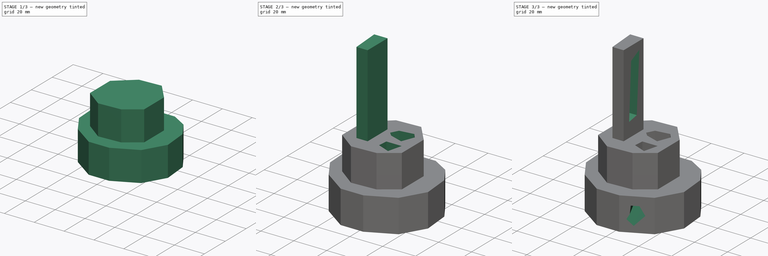
[diagram: build sequence overview — one tinted view per stage of 3, left to right]
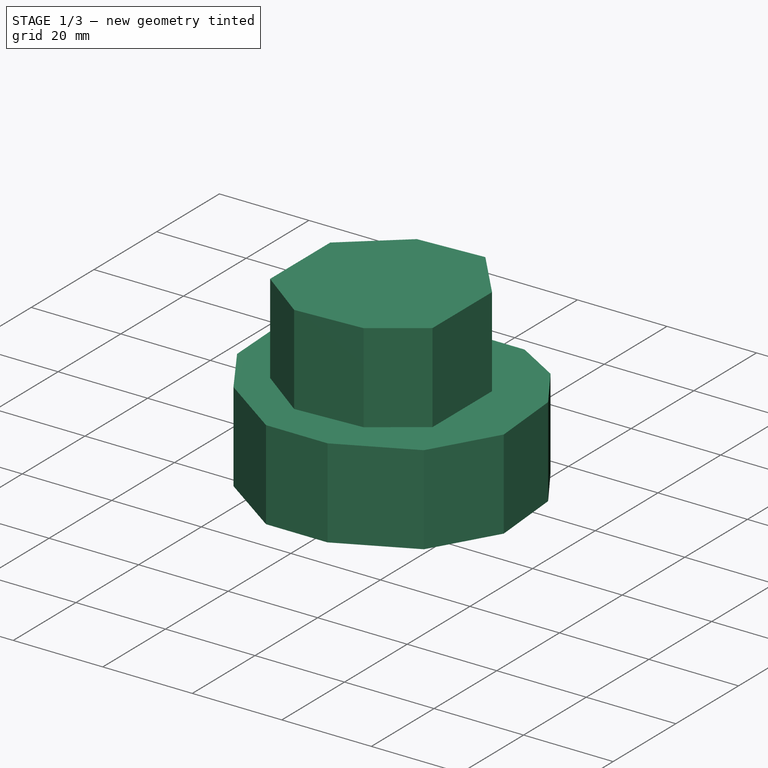
[diagram: stage 1 of 3 — iso view after this stage's code; geometry added in this stage tinted green]
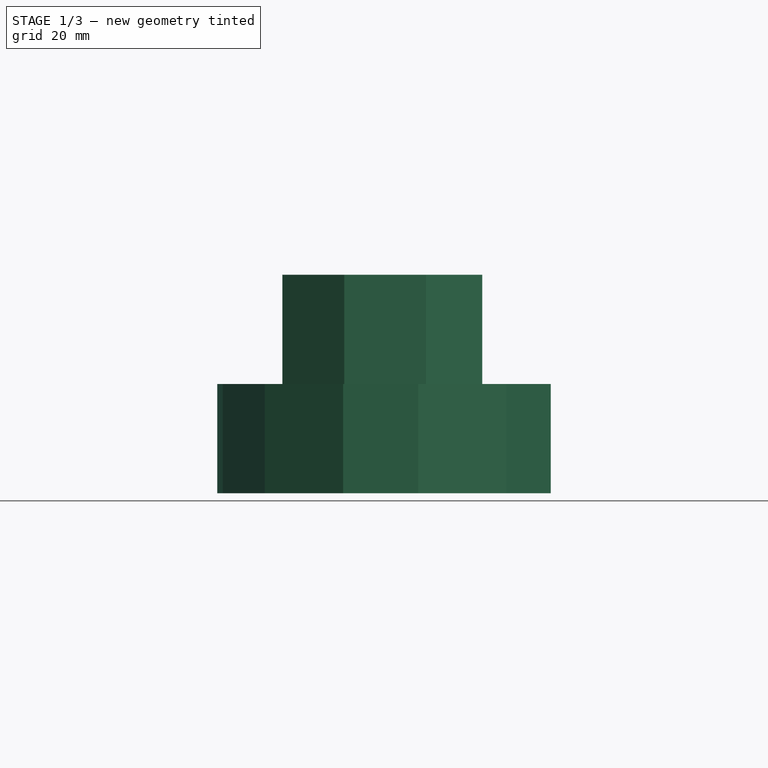
[diagram: stage 1 of 3 — front view after this stage's code; geometry added in this stage tinted green]
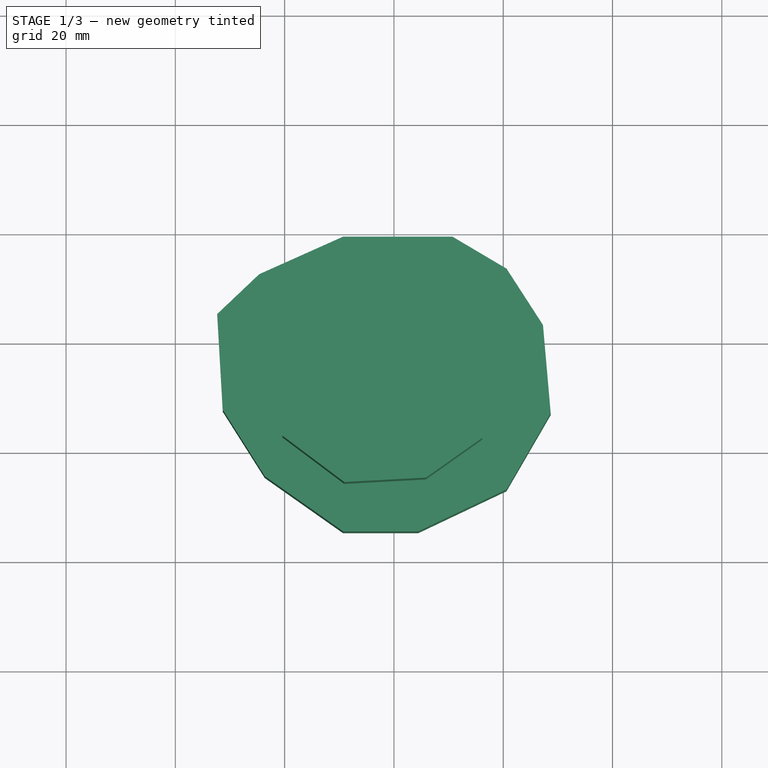
[diagram: stage 1 of 3 — top view after this stage's code; geometry added in this stage tinted green]
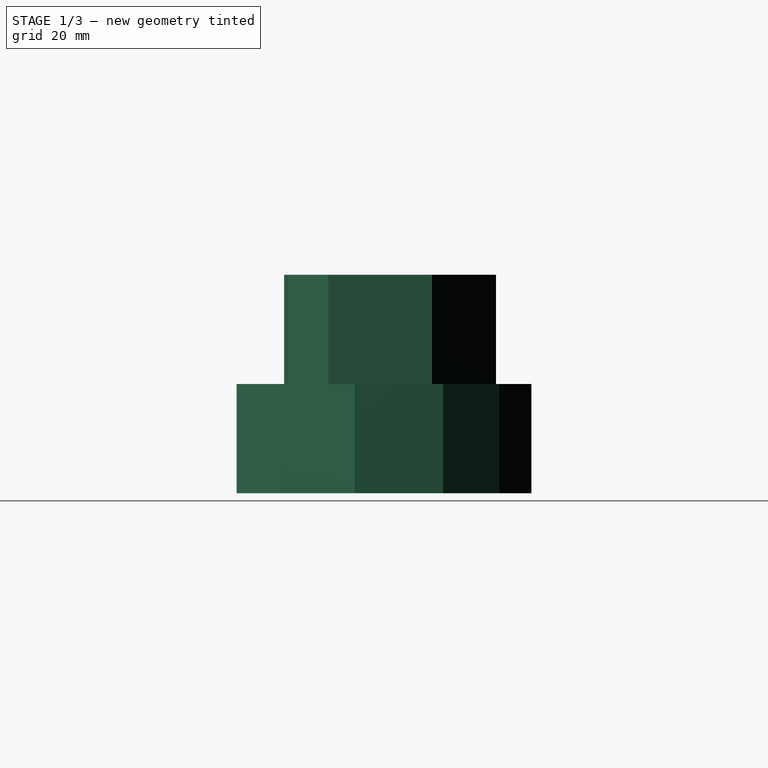
[diagram: stage 1 of 3 — right view after this stage's code; geometry added in this stage tinted green]
FCSTD DOCUMENT  (FreeCAD 0.21R33694 (Git))
Label: OJT1_T17P01_cara
License: All rights reserved
LicenseURL: http://en.wikipedia.org/wiki/All_rights_reserved
objects: Sketcher::SketchObject×7, PartDesign::Pocket×4, PartDesign::Pad×3, PartDesign::Body×1
note: 22 computed .brp shape members not serialized (recipe doc carries the construction recipe); baked Part::Feature solids carry a one-line shape summary decoded from their .brp

FEATURE [Sketcher::SketchObject] Sketch
  FullyConstrained = false
  MapMode = 5
  Support = -> [XY_Plane]
  sketch-geometry (12):
    g0: LineSegment StartX=-9.29293 StartY=39.2929 StartZ=0 EndX=10.7071 EndY=39.2929 EndZ=0
    g1: LineSegment StartX=10.7071 StartY=39.2929 StartZ=0 EndX=20.6061 EndY=33.4343 EndZ=0
    g2: LineSegment StartX=20.6061 StartY=33.4343 StartZ=0 EndX=27.2727 EndY=23.1313 EndZ=0
    g3: LineSegment StartX=27.2727 StartY=23.1313 StartZ=0 EndX=28.6869 EndY=6.9697 EndZ=0
    g4: LineSegment StartX=28.6869 StartY=6.9697 StartZ=0 EndX=20.6061 EndY=-6.9697 EndZ=0
    g5: LineSegment StartX=20.6061 StartY=-6.9697 StartZ=0 EndX=4.44444 EndY=-14.6465 EndZ=0
    g6: LineSegment StartX=4.44444 StartY=-14.6465 StartZ=0 EndX=-9.29293 EndY=-14.6465 EndZ=0
    g7: LineSegment StartX=-9.29293 StartY=-14.6465 StartZ=0 EndX=-23.6364 EndY=-4.54545 EndZ=0
    g8: LineSegment StartX=-23.6364 StartY=-4.54545 StartZ=0 EndX=-31.3131 EndY=7.57576 EndZ=0
    g9: LineSegment StartX=-31.3131 StartY=7.57576 StartZ=0 EndX=-32.3232 EndY=25.1515 EndZ=0
    g10: LineSegment StartX=-32.3232 StartY=25.1515 StartZ=0 EndX=-24.6465 EndY=32.4242 EndZ=0
    g11: LineSegment StartX=-24.6465 StartY=32.4242 StartZ=0 EndX=-9.29293 EndY=39.2929 EndZ=0
  constraints (14):
    c: Horizontal(g0)
    c: Coincident(g0,g1)
    c: Coincident(g1,g2)
    c: Coincident(g2,g3)
    c: Coincident(g3,g4)
    c: Coincident(g4,g5)
    c: Coincident(g5,g6)
    c: Horizontal(g6)
    c: Coincident(g6,g7)
    c: Coincident(g7,g8)
    c: Coincident(g8,g9)
    c: Coincident(g9,g10)
    c: Coincident(g10,g11)
    c: Coincident(g11,g0)
FEATURE [PartDesign::Pad] Pad
  Direction = (0,0,1)
  Length = 20
  Length2 = 10
  Profile = -> Sketch
  ReferenceAxis = -> Sketch [N_Axis]
  Type = 0
FEATURE [Sketcher::SketchObject] Sketch001
  FullyConstrained = false
  MapMode = 5
  Placement = pos=(0,0,20) rot=(0,0,1;0rad)
  Support = -> [Pad]
  sketch-geometry (8):
    g0: LineSegment StartX=-8.28283 StartY=32.0202 StartZ=0 EndX=-20.404 EndY=21.7172 EndZ=0
    g1: LineSegment StartX=-20.404 StartY=21.7172 StartZ=0 EndX=-20.404 EndY=2.52525 EndZ=0
    g2: LineSegment StartX=-20.404 StartY=2.52525 StartZ=0 EndX=-9.0909 EndY=-5.9596 EndZ=0
    g3: LineSegment StartX=-9.0909 StartY=-5.9596 StartZ=0 EndX=5.85859 EndY=-5.15152 EndZ=0
    g4: LineSegment StartX=5.85859 StartY=-5.15152 StartZ=0 EndX=16.1616 EndY=2.12121 EndZ=0
    g5: LineSegment StartX=16.1616 StartY=2.12121 StartZ=0 EndX=16.1616 EndY=21.1111 EndZ=0
    g6: LineSegment StartX=16.1616 StartY=21.1111 StartZ=0 EndX=6.46466 EndY=32.8283 EndZ=0
    g7: LineSegment StartX=6.46466 StartY=32.8283 StartZ=0 EndX=-8.28283 EndY=32.0202 EndZ=0
  constraints (10):
    c: Coincident(g0,g1)
    c: Vertical(g1)
    c: Coincident(g1,g2)
    c: Coincident(g2,g3)
    c: Coincident(g3,g4)
    c: Coincident(g4,g5)
    c: Vertical(g5)
    c: Coincident(g5,g6)
    c: Coincident(g6,g7)
    c: Coincident(g7,g0)
FEATURE [PartDesign::Pad] Pad001
  BaseFeature = -> Pad
  Direction = (0,0,1)
  Length = 20
  Length2 = 10
  Profile = -> Sketch001
  ReferenceAxis = -> Sketch001 [N_Axis]
  Type = 0
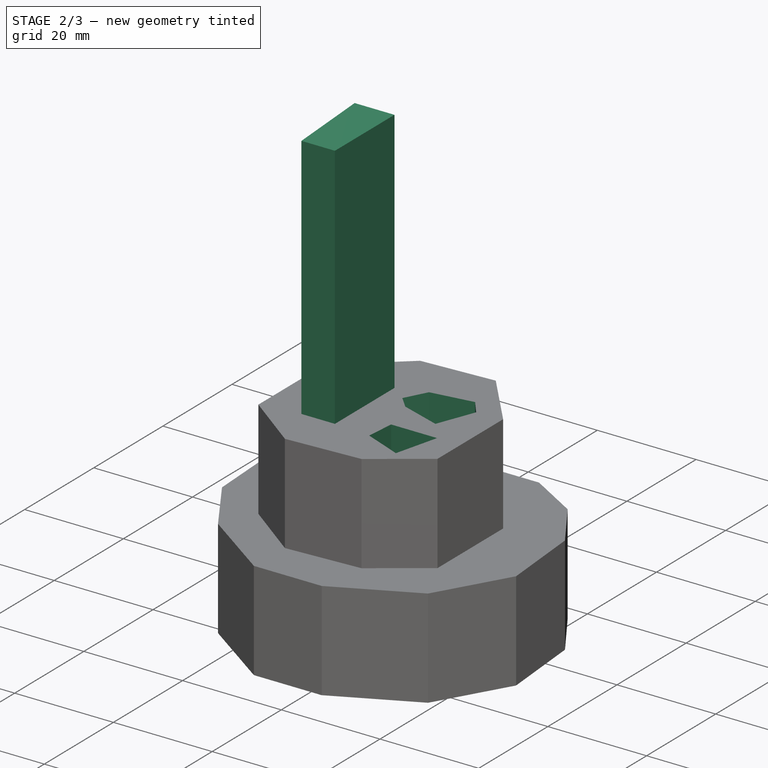
[diagram: stage 2 of 3 — iso view after this stage's code; geometry added in this stage tinted green]
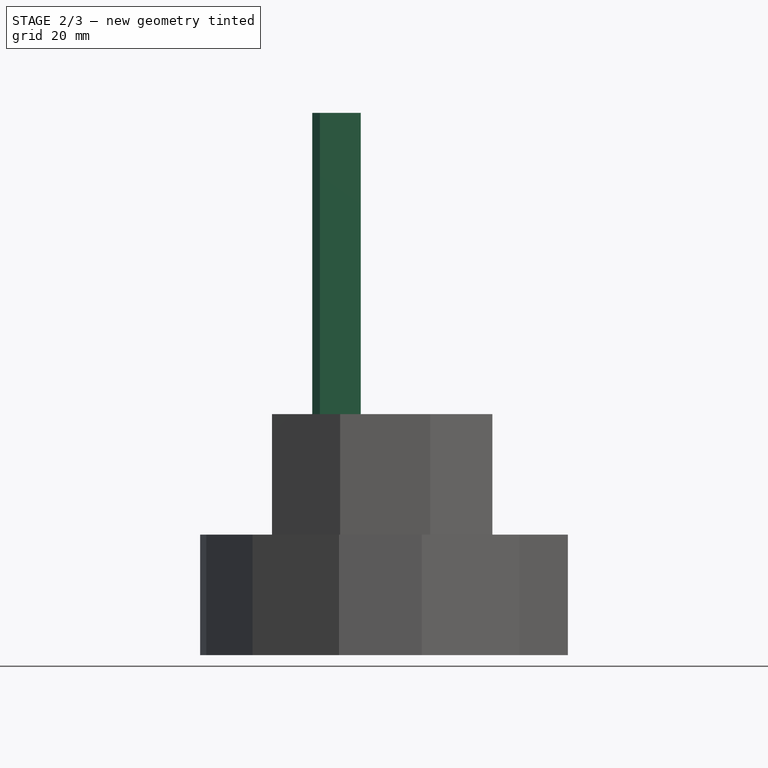
[diagram: stage 2 of 3 — front view after this stage's code; geometry added in this stage tinted green]
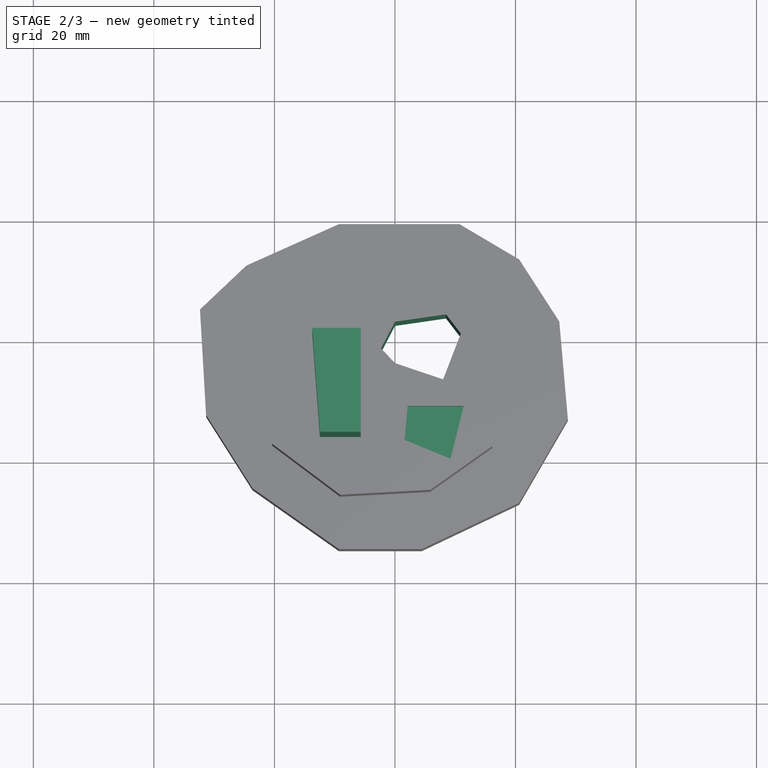
[diagram: stage 2 of 3 — top view after this stage's code; geometry added in this stage tinted green]
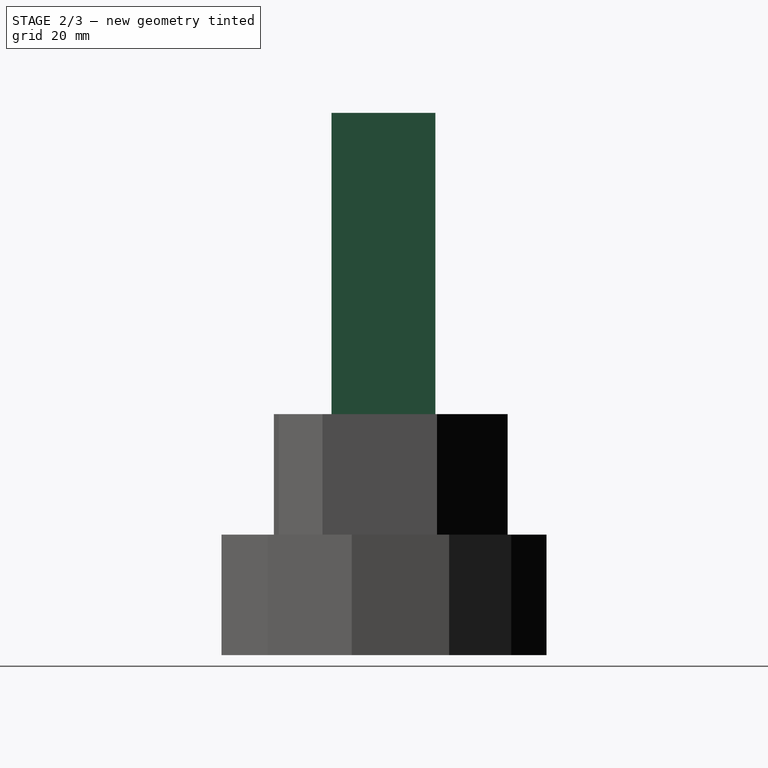
[diagram: stage 2 of 3 — right view after this stage's code; geometry added in this stage tinted green]
FEATURE [Sketcher::SketchObject] Sketch002
  FullyConstrained = false
  MapMode = 5
  Placement = pos=(0,0,40) rot=(0,0,1;0rad)
  Support = -> [Pad001]
  sketch-geometry (4):
    g0: LineSegment StartX=-13.732 StartY=20.8462 StartZ=0 EndX=-12.449 EndY=3.61695 EndZ=0
    g1: LineSegment StartX=-12.449 StartY=3.61695 StartZ=0 EndX=-5.66728 EndY=3.61695 EndZ=0
    g2: LineSegment StartX=-5.66728 StartY=3.61695 StartZ=0 EndX=-5.66728 EndY=20.8462 EndZ=0
    g3: LineSegment StartX=-5.66728 StartY=20.8462 StartZ=0 EndX=-13.732 EndY=20.8462 EndZ=0
  constraints (7):
    c: Coincident(g0,g1)
    c: Horizontal(g1)
    c: Coincident(g1,g2)
    c: Vertical(g2)
    c: Coincident(g2,g3)
    c: Coincident(g3,g0)
    c: Horizontal(g3)
FEATURE [PartDesign::Pad] Pad002
  BaseFeature = -> Pad001
  Direction = (0,0,1)
  Length = 50
  Length2 = 10
  Profile = -> Sketch002
  ReferenceAxis = -> Sketch002 [N_Axis]
  Type = 0
FEATURE [Sketcher::SketchObject] Sketch003
  FullyConstrained = false
  MapMode = 5
  Placement = pos=(0,0,40) rot=(0,0,1;0rad)
  Support = -> [Pad002]
  sketch-geometry (4):
    g0: LineSegment StartX=2.10502 StartY=8.76783 StartZ=0 EndX=11.4226 EndY=8.76783 EndZ=0
    g1: LineSegment StartX=11.4226 StartY=8.76783 StartZ=0 EndX=9.21583 EndY=0 EndZ=0
    g2: LineSegment StartX=9.21583 StartY=0 StartZ=0 EndX=1.61462 EndY=3.12822 EndZ=0
    g3: LineSegment StartX=1.61462 StartY=3.12822 StartZ=0 EndX=2.10502 EndY=8.76783 EndZ=0
  constraints (6):
    c: Horizontal(g0)
    c: Coincident(g0,g1)
    c: PointOnObject(g1,g-1)
    c: Coincident(g1,g2)
    c: Coincident(g2,g3)
    c: Coincident(g3,g0)
FEATURE [PartDesign::Pocket] Pocket
  BaseFeature = -> Pad002
  Direction = (0,0,-1)
  Length = 5
  Length2 = 5
  Profile = -> Sketch003
  ReferenceAxis = -> Sketch003 [N_Axis]
  Type = 0
FEATURE [Sketcher::SketchObject] Sketch004
  FullyConstrained = false
  MapMode = 5
  Placement = pos=(0,0,40) rot=(0,0,1;0rad)
  Support = -> [Pocket]
  sketch-geometry (6):
    g0: LineSegment StartX=0 StartY=22.7442 StartZ=0 EndX=8.48024 EndY=23.9703 EndZ=0
    g1: LineSegment StartX=8.48024 StartY=23.9703 StartZ=0 EndX=10.9322 EndY=20.7826 EndZ=0
    g2: LineSegment StartX=10.9322 StartY=20.7826 StartZ=0 EndX=7.98984 EndY=13.1814 EndZ=0
    g3: LineSegment StartX=7.98984 StartY=13.1814 StartZ=0 EndX=0 EndY=15.8786 EndZ=0
    g4: LineSegment StartX=0 StartY=15.8786 StartZ=0 EndX=-2.30858 EndY=18.3306 EndZ=0
    g5: LineSegment StartX=-2.30858 StartY=18.3306 StartZ=0 EndX=0 EndY=22.7442 EndZ=0
  constraints (8):
    c: PointOnObject(g0,g-2)
    c: Coincident(g0,g1)
    c: Coincident(g1,g2)
    c: Coincident(g2,g3)
    c: PointOnObject(g3,g-2)
    c: Coincident(g3,g4)
    c: Coincident(g4,g5)
    c: Coincident(g5,g0)
FEATURE [PartDesign::Pocket] Pocket001
  BaseFeature = -> Pocket
  Direction = (0,0,-1)
  Length = 5
  Length2 = 5
  Profile = -> Sketch004
  ReferenceAxis = -> Sketch004 [N_Axis]
  Type = 1
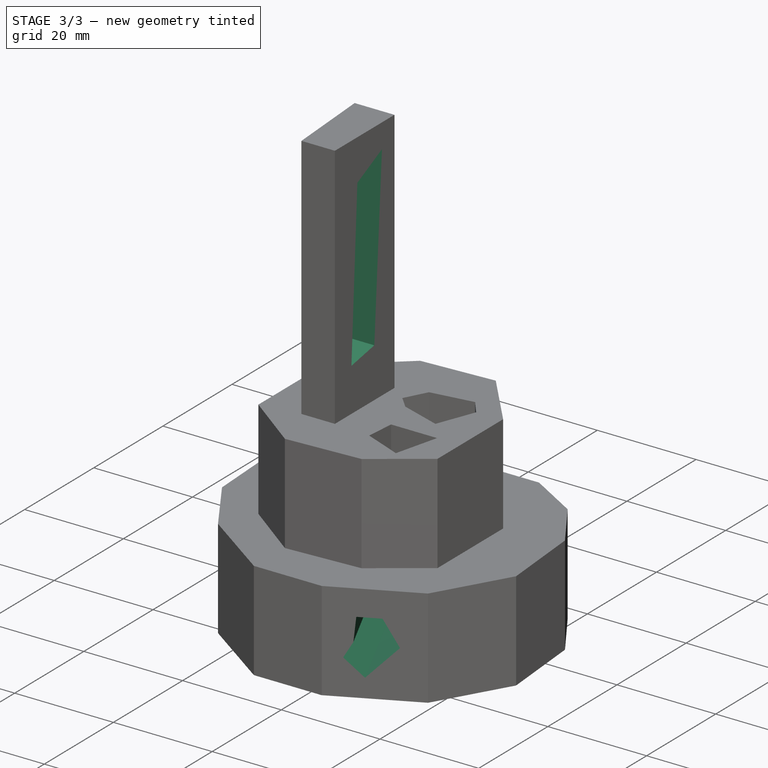
[diagram: stage 3 of 3 — iso view after this stage's code; geometry added in this stage tinted green]
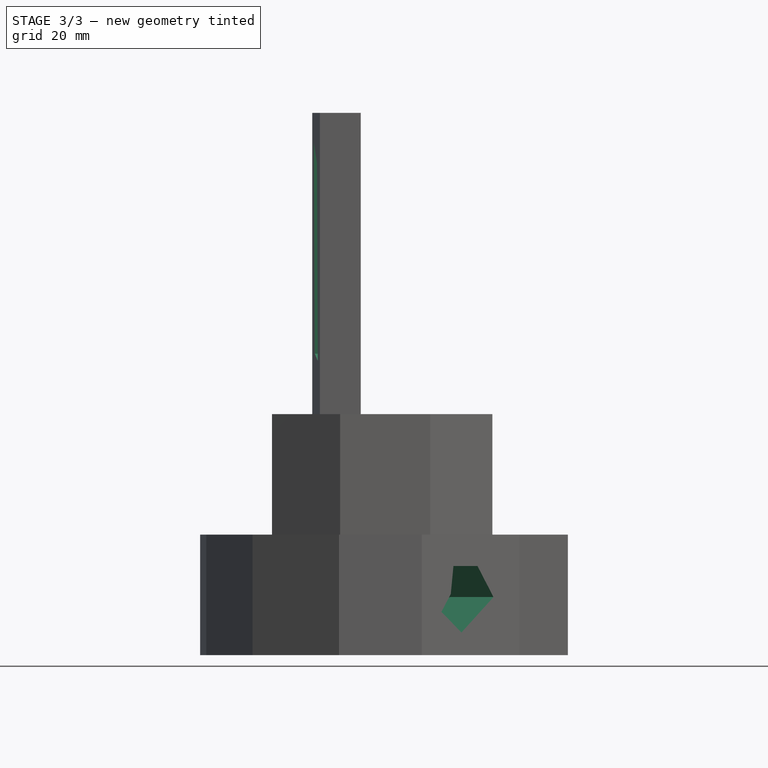
[diagram: stage 3 of 3 — front view after this stage's code; geometry added in this stage tinted green]
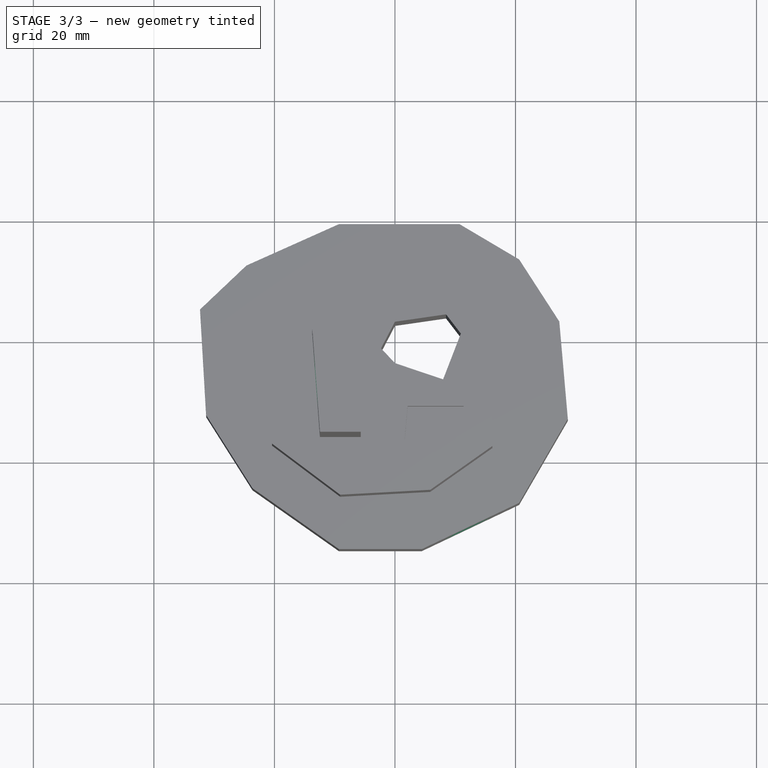
[diagram: stage 3 of 3 — top view after this stage's code; geometry added in this stage tinted green]
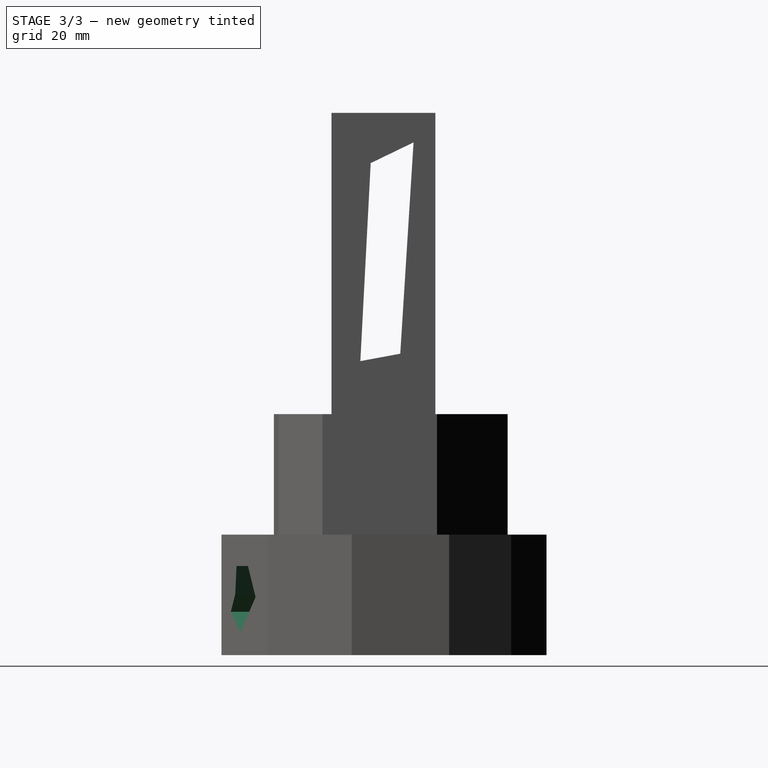
[diagram: stage 3 of 3 — right view after this stage's code; geometry added in this stage tinted green]
FEATURE [Sketcher::SketchObject] Sketch005
  FullyConstrained = false
  MapMode = 5
  Placement = pos=(6.49452,-13.6727,0) rot=(0.952754,0.21478,0.21478;1.61918rad)
  Support = -> [Pocket001]
  sketch-geometry (6):
    g0: LineSegment StartX=3.55448 StartY=14.7988 StartZ=0 EndX=7.96808 EndY=14.7988 EndZ=0
    g1: LineSegment StartX=7.96808 StartY=14.7988 StartZ=0 EndX=10.9105 EndY=9.64964 EndZ=0
    g2: LineSegment StartX=10.9105 StartY=9.64964 StartZ=0 EndX=5.02568 EndY=3.76483 EndZ=0
    g3: LineSegment StartX=5.02568 StartY=3.76483 StartZ=0 EndX=1.34767 EndY=7.19764 EndZ=0
    g4: LineSegment StartX=1.34767 StartY=7.19764 StartZ=0 EndX=3.06408 EndY=10.14 EndZ=0
    g5: LineSegment StartX=3.06408 StartY=10.14 StartZ=0 EndX=3.55448 EndY=14.7988 EndZ=0
  constraints (7):
    c: Horizontal(g0)
    c: Coincident(g0,g1)
    c: Coincident(g1,g2)
    c: Coincident(g2,g3)
    c: Coincident(g3,g4)
    c: Coincident(g4,g5)
    c: Coincident(g5,g0)
FEATURE [PartDesign::Pocket] Pocket002
  BaseFeature = -> Pocket001
  Direction = (-0.429057,0.903278,0)
  Length = 5
  Length2 = 5
  Profile = -> Sketch005
  ReferenceAxis = -> Sketch005 [N_Axis]
  Type = 2
FEATURE [Sketcher::SketchObject] Sketch006
  FullyConstrained = false
  MapMode = 5
  Placement = pos=(-5.66728,0,0) rot=(0.57735,0.57735,0.57735;2.0944rad)
  Support = -> [Pocket002]
  sketch-geometry (4):
    g0: LineSegment StartX=10.1164 StartY=81.6575 StartZ=0 EndX=8.40002 EndY=48.8006 EndZ=0
    g1: LineSegment StartX=8.40002 StartY=48.8006 StartZ=0 EndX=15.0204 EndY=50.0266 EndZ=0
    g2: LineSegment StartX=15.0204 StartY=50.0266 StartZ=0 EndX=17.2272 EndY=85.0903 EndZ=0
    g3: LineSegment StartX=17.2272 StartY=85.0903 StartZ=0 EndX=10.1164 EndY=81.6575 EndZ=0
  constraints (4):
    c: Coincident(g0,g1)
    c: Coincident(g1,g2)
    c: Coincident(g2,g3)
    c: Coincident(g3,g0)
FEATURE [PartDesign::Pocket] Pocket003
  BaseFeature = -> Pocket002
  Direction = (-1,0,0)
  Length = 5
  Length2 = 5
  Profile = -> Sketch006
  ReferenceAxis = -> Sketch006 [N_Axis]
  Type = 1
FEATURE [PartDesign::Body] Body
  Group = -> [Sketch,Pad,Sketch001,Pad001,Sketch002,Pad002,Sketch003,Pocket,Sketch004,Pocket001,Sketch005,Pocket002,Sketch006,Pocket003]
  Origin = -> Origin
  Tip = -> Pocket003
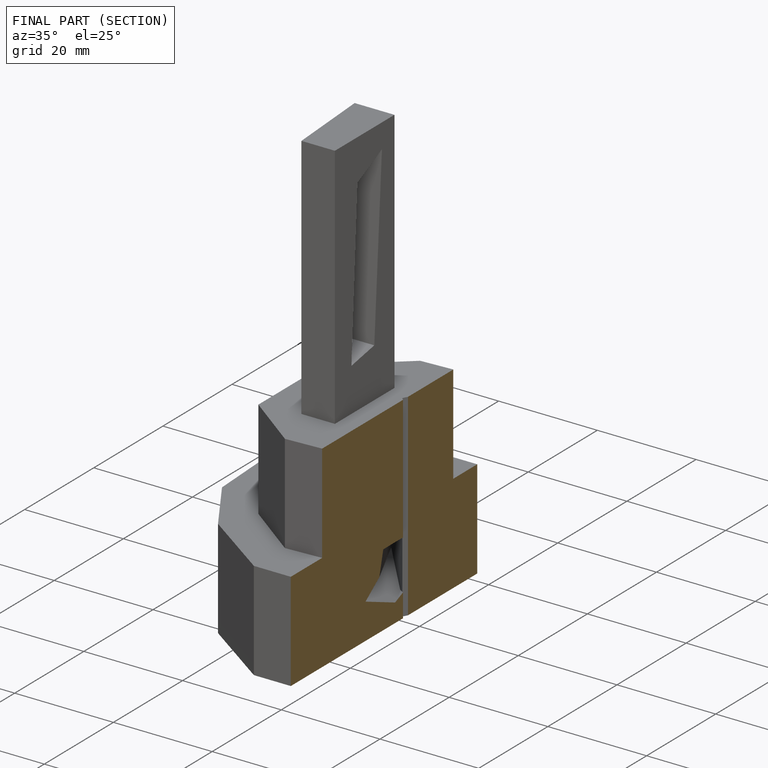
[diagram: finished part — half-section view (interior)]
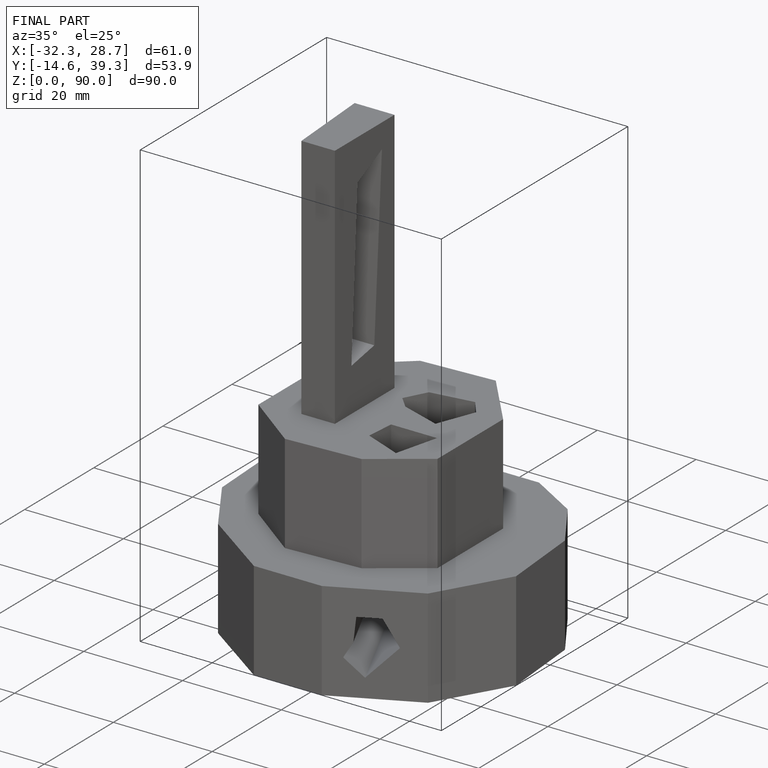
[diagram: finished part — iso view with bounding-box wireframe]
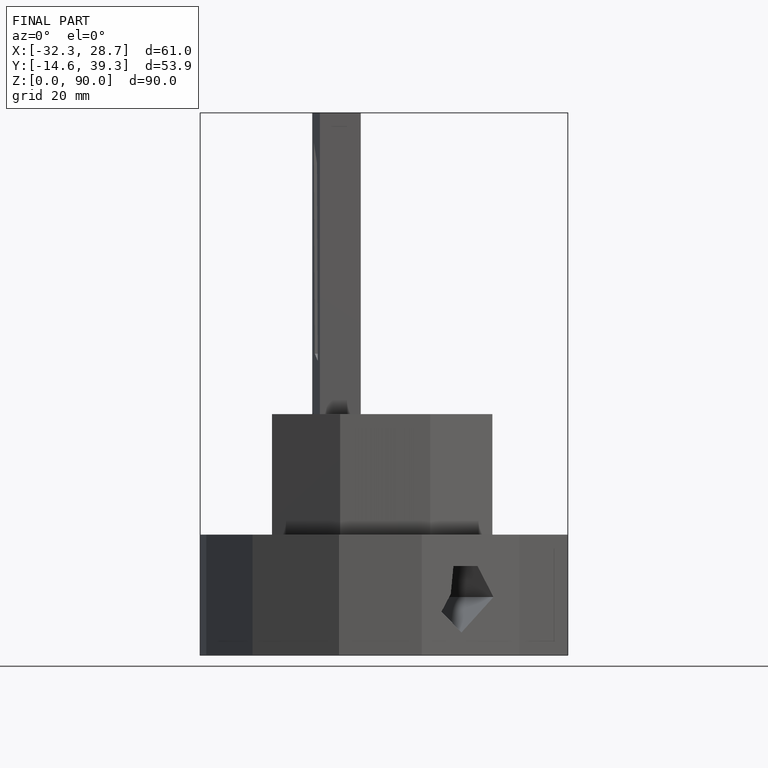
[diagram: finished part — front view with bounding-box wireframe]
